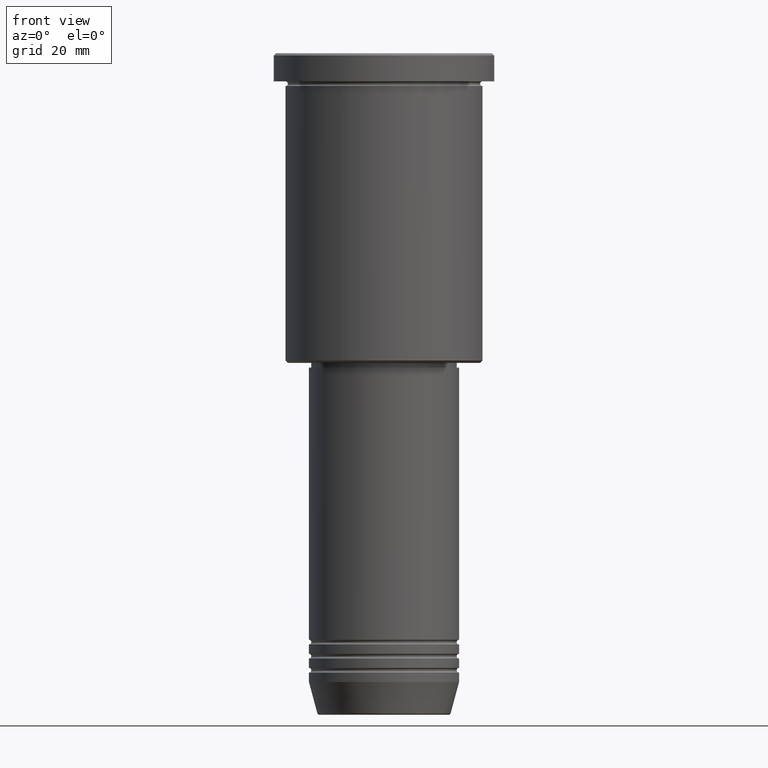
[diagram: clean part render]
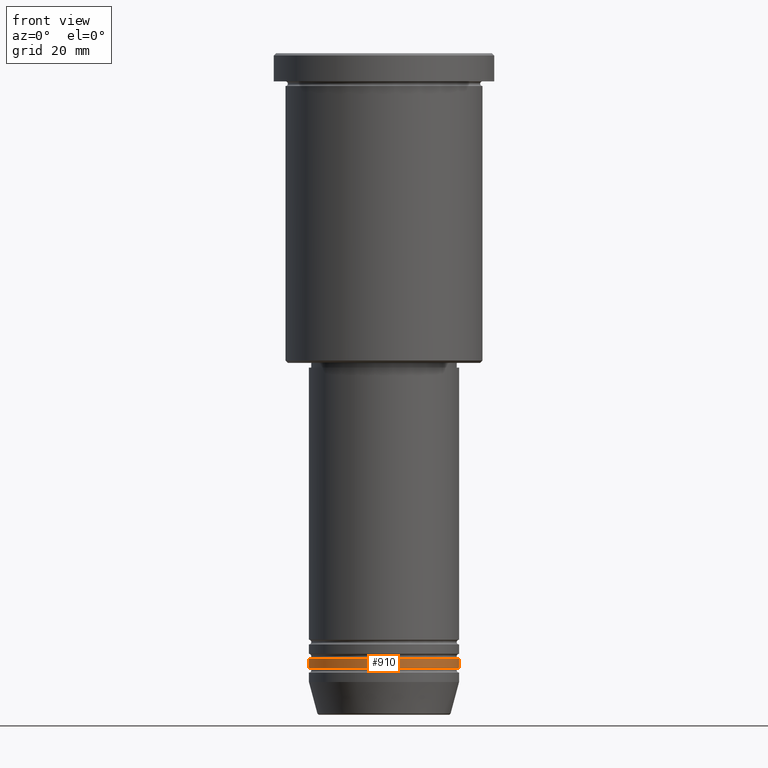
[diagram: same view with one face highlighted and labeled with its STEP entity id]
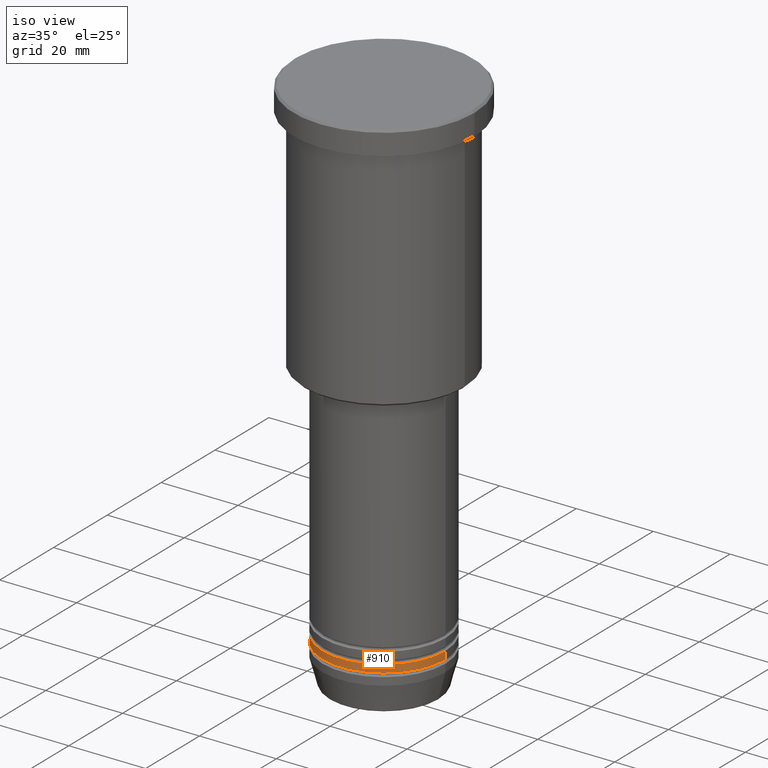
[diagram: same view with one face highlighted and labeled with its STEP entity id]
A machine part, front view. The second image highlights one B-rep face of the part: STEP entity #910.
A second angle (iso view) of the same face is appended — the face is thin or edge-on in the first view.
In plain terms, the highlighted cylindrical surface (partial cylindrical patch) has radius 16 mm, axis along (-0, -0, 1).
Its self-contained STEP definition (entity closure, byte-faithful):
#21 = VECTOR ( 'NONE', #734, 1000.000000000000000 ) ;
#30 = DIRECTION ( 'NONE',  ( -0.000000000000000000, -0.000000000000000000, 1.000000000000000000 ) ) ;
#44 = CARTESIAN_POINT ( 'NONE',  ( 16.00000000000000000, 0.000000000000000000, -128.9999999999999716 ) ) ;
#69 = EDGE_LOOP ( 'NONE', ( #84, #264, #782, #1013 ) ) ;
#72 = CARTESIAN_POINT ( 'NONE',  ( 16.00000000000000000, 0.000000000000000000, -130.9999999999999716 ) ) ;
#84 = ORIENTED_EDGE ( 'NONE', *, *, #690, .F. ) ;
#119 = VECTOR ( 'NONE', #865, 1000.000000000000000 ) ;
#130 = LINE ( 'NONE', #499, #119 ) ;
#197 = CARTESIAN_POINT ( 'NONE',  ( 0.000000000000000000, 0.000000000000000000, 0.000000000000000000 ) ) ;
#206 = AXIS2_PLACEMENT_3D ( 'NONE', #938, #30, #1032 ) ;
#264 = ORIENTED_EDGE ( 'NONE', *, *, #1038, .T. ) ;
#301 = VERTEX_POINT ( 'NONE', #1145 ) ;
#421 = CARTESIAN_POINT ( 'NONE',  ( 0.000000000000000000, 0.000000000000000000, -128.9999999999999716 ) ) ;
#452 = DIRECTION ( 'NONE',  ( -0.000000000000000000, -0.000000000000000000, 1.000000000000000000 ) ) ;
#470 = CARTESIAN_POINT ( 'NONE',  ( 16.00000000000000000, 0.000000000000000000, 0.000000000000000000 ) ) ;
#474 = DIRECTION ( 'NONE',  ( 1.000000000000000000, 0.000000000000000000, 0.000000000000000000 ) ) ;
#499 = CARTESIAN_POINT ( 'NONE',  ( -16.00000000000000000, 1.959434878635765131E-15, 0.000000000000000000 ) ) ;
#510 = DIRECTION ( 'NONE',  ( 1.000000000000000000, 0.000000000000000000, 0.000000000000000000 ) ) ;
#543 = VERTEX_POINT ( 'NONE', #1015 ) ;
#560 = CIRCLE ( 'NONE', #850, 16.00000000000000000 ) ;
#647 = CYLINDRICAL_SURFACE ( 'NONE', #907, 16.00000000000000000 ) ;
#690 = EDGE_CURVE ( 'NONE', #301, #543, #130, .T. ) ;
#716 = VERTEX_POINT ( 'NONE', #44 ) ;
#734 = DIRECTION ( 'NONE',  ( -0.000000000000000000, -0.000000000000000000, 1.000000000000000000 ) ) ;
#773 = EDGE_CURVE ( 'NONE', #543, #716, #560, .T. ) ;
#782 = ORIENTED_EDGE ( 'NONE', *, *, #1022, .T. ) ;
#850 = AXIS2_PLACEMENT_3D ( 'NONE', #421, #904, #510 ) ;
#865 = DIRECTION ( 'NONE',  ( -0.000000000000000000, -0.000000000000000000, 1.000000000000000000 ) ) ;
#867 = CIRCLE ( 'NONE', #206, 16.00000000000000000 ) ;
#898 = VERTEX_POINT ( 'NONE', #72 ) ;
#904 = DIRECTION ( 'NONE',  ( -0.000000000000000000, -0.000000000000000000, 1.000000000000000000 ) ) ;
#907 = AXIS2_PLACEMENT_3D ( 'NONE', #197, #452, #474 ) ;
#910 = ADVANCED_FACE ( 'NONE', ( #1003 ), #647, .T. ) ;
#938 = CARTESIAN_POINT ( 'NONE',  ( 0.000000000000000000, 0.000000000000000000, -130.9999999999999716 ) ) ;
#1003 = FACE_OUTER_BOUND ( 'NONE', #69, .T. ) ;
#1013 = ORIENTED_EDGE ( 'NONE', *, *, #773, .F. ) ;
#1015 = CARTESIAN_POINT ( 'NONE',  ( -16.00000000000000000, 1.959434878635765131E-15, -128.9999999999999716 ) ) ;
#1019 = LINE ( 'NONE', #470, #21 ) ;
#1022 = EDGE_CURVE ( 'NONE', #898, #716, #1019, .T. ) ;
#1032 = DIRECTION ( 'NONE',  ( 1.000000000000000000, 0.000000000000000000, 0.000000000000000000 ) ) ;
#1038 = EDGE_CURVE ( 'NONE', #301, #898, #867, .T. ) ;
#1145 = CARTESIAN_POINT ( 'NONE',  ( -16.00000000000000000, 1.959434878635765131E-15, -130.9999999999999716 ) ) ;